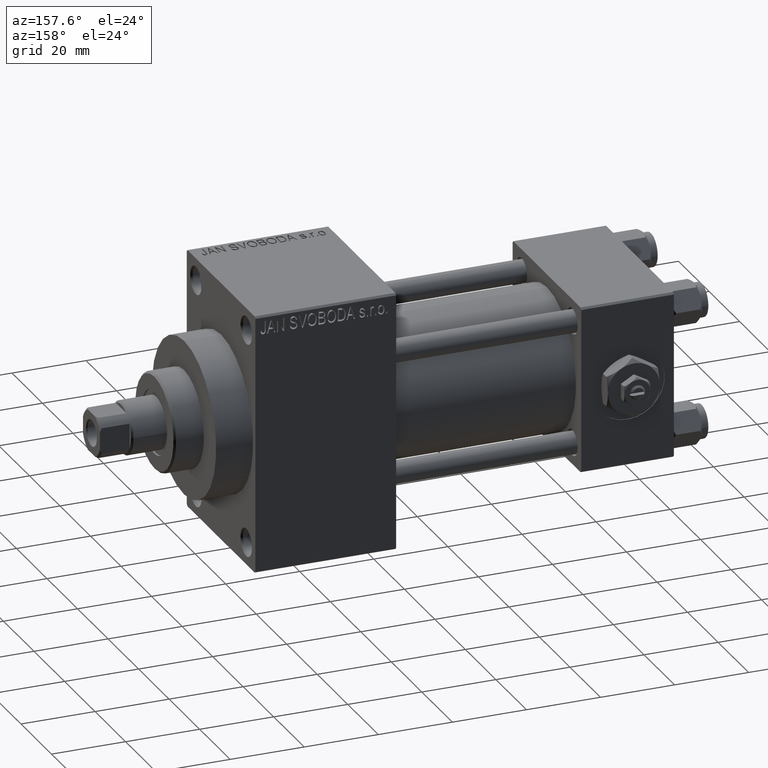
[diagram: clean part render]
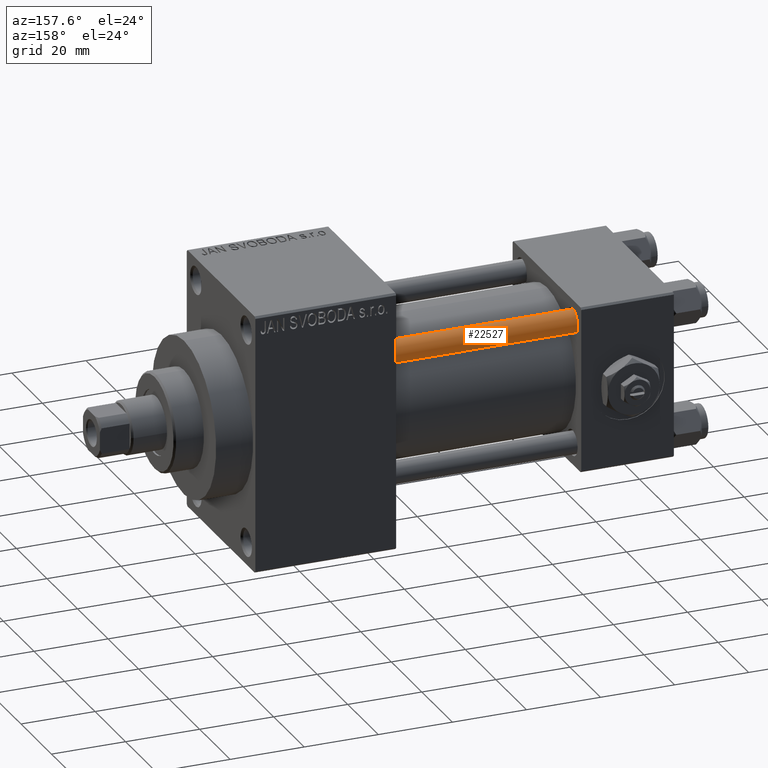
[diagram: same view with one face highlighted and labeled with its STEP entity id]
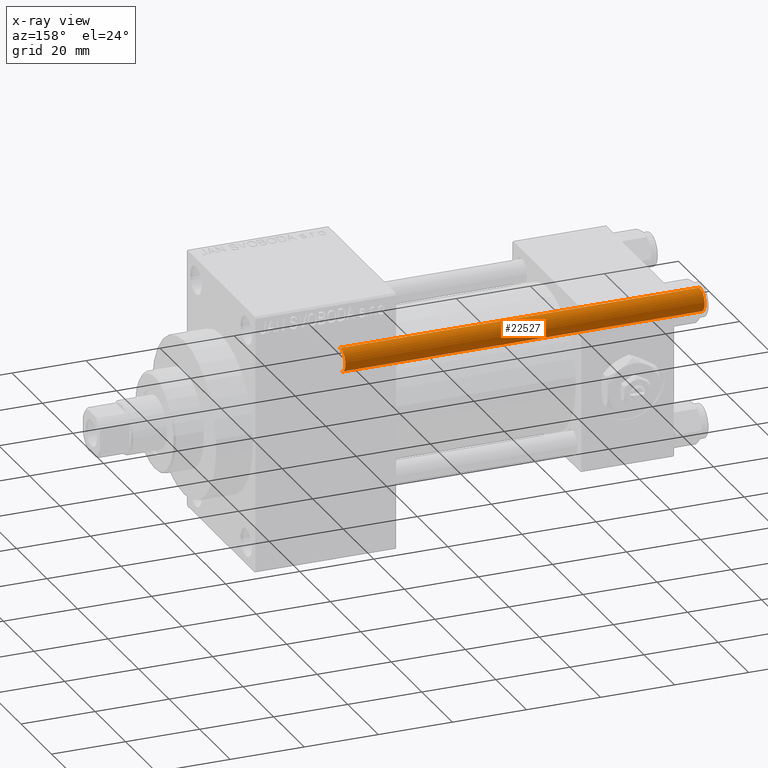
[diagram: x-ray of the same camera — body ghosted, the highlighted face saturated]
A machine part, auxiliary view. The second image highlights one B-rep face of the part: STEP entity #22527.
The next image is the same camera in x-ray: the body ghosted, the highlighted face saturated — about 0% of this face is hidden behind the body in this view.
In plain terms, the highlighted cylindrical surface (edge-blend (fillet) strip) has radius 3 mm, axis along (-1, -0, 0).
Its self-contained STEP definition (entity closure, byte-faithful):
#2483 = DIRECTION ( 'NONE',  ( 1.000000000000000000, 0.000000000000000000, 0.000000000000000000 ) ) ;
#2651 = ORIENTED_EDGE ( 'NONE', *, *, #8471, .T. ) ;
#2724 = DIRECTION ( 'NONE',  ( 0.000000000000000000, 0.000000000000000000, -1.000000000000000000 ) ) ;
#3730 = CYLINDRICAL_SURFACE ( 'NONE', #40216, 3.000000000000000444 ) ;
#4523 = ORIENTED_EDGE ( 'NONE', *, *, #36826, .T. ) ;
#4977 = CARTESIAN_POINT ( 'NONE',  ( 3.000000000000000444, 3.673940397442060361E-16, 97.50000000000001421 ) ) ;
#6972 = CARTESIAN_POINT ( 'NONE',  ( -3.000000000000000444, 0.000000000000000000, 0.5000000000000281997 ) ) ;
#7430 = ORIENTED_EDGE ( 'NONE', *, *, #20233, .F. ) ;
#7720 = VERTEX_POINT ( 'NONE', #11258 ) ;
#8471 = EDGE_CURVE ( 'NONE', #42062, #7720, #17257, .T. ) ;
#11258 = CARTESIAN_POINT ( 'NONE',  ( 3.000000000000000444, 3.673940397442060361E-16, 0.5000000000000281997 ) ) ;
#12080 = DIRECTION ( 'NONE',  ( -1.000000000000000000, 0.000000000000000000, 0.000000000000000000 ) ) ;
#12818 = CIRCLE ( 'NONE', #19109, 3.000000000000000444 ) ;
#14910 = CARTESIAN_POINT ( 'NONE',  ( -3.000000000000000444, 0.000000000000000000, 97.50000000000001421 ) ) ;
#15764 = CARTESIAN_POINT ( 'NONE',  ( 0.000000000000000000, 0.000000000000000000, 98.00000000000000000 ) ) ;
#16653 = LINE ( 'NONE', #21083, #40915 ) ;
#17257 = LINE ( 'NONE', #21676, #42980 ) ;
#19109 = AXIS2_PLACEMENT_3D ( 'NONE', #24397, #2724, #2483 ) ;
#20233 = EDGE_CURVE ( 'NONE', #20279, #36696, #16653, .T. ) ;
#20279 = VERTEX_POINT ( 'NONE', #14910 ) ;
#21083 = CARTESIAN_POINT ( 'NONE',  ( -3.000000000000000444, 0.000000000000000000, 98.00000000000000000 ) ) ;
#21676 = CARTESIAN_POINT ( 'NONE',  ( 3.000000000000000444, 3.673940397442060361E-16, 98.00000000000000000 ) ) ;
#22527 = ADVANCED_FACE ( 'NONE', ( #26606 ), #3730, .T. ) ;
#23920 = AXIS2_PLACEMENT_3D ( 'NONE', #26200, #45076, #37494 ) ;
#24397 = CARTESIAN_POINT ( 'NONE',  ( 0.000000000000000000, 0.000000000000000000, 97.50000000000001421 ) ) ;
#26200 = CARTESIAN_POINT ( 'NONE',  ( 0.000000000000000000, 0.000000000000000000, 0.5000000000000281997 ) ) ;
#26606 = FACE_OUTER_BOUND ( 'NONE', #31353, .T. ) ;
#27402 = ORIENTED_EDGE ( 'NONE', *, *, #43077, .T. ) ;
#28566 = DIRECTION ( 'NONE',  ( -0.000000000000000000, -0.000000000000000000, -1.000000000000000000 ) ) ;
#31353 = EDGE_LOOP ( 'NONE', ( #4523, #2651, #27402, #7430 ) ) ;
#31906 = DIRECTION ( 'NONE',  ( -0.000000000000000000, -0.000000000000000000, -1.000000000000000000 ) ) ;
#32544 = CIRCLE ( 'NONE', #23920, 3.000000000000000444 ) ;
#33730 = DIRECTION ( 'NONE',  ( -0.000000000000000000, -0.000000000000000000, -1.000000000000000000 ) ) ;
#36696 = VERTEX_POINT ( 'NONE', #6972 ) ;
#36826 = EDGE_CURVE ( 'NONE', #20279, #42062, #12818, .T. ) ;
#37494 = DIRECTION ( 'NONE',  ( 1.000000000000000000, 0.000000000000000000, 0.000000000000000000 ) ) ;
#40216 = AXIS2_PLACEMENT_3D ( 'NONE', #15764, #33730, #12080 ) ;
#40915 = VECTOR ( 'NONE', #31906, 1000.000000000000000 ) ;
#42062 = VERTEX_POINT ( 'NONE', #4977 ) ;
#42980 = VECTOR ( 'NONE', #28566, 1000.000000000000000 ) ;
#43077 = EDGE_CURVE ( 'NONE', #7720, #36696, #32544, .T. ) ;
#45076 = DIRECTION ( 'NONE',  ( -0.000000000000000000, -0.000000000000000000, 1.000000000000000000 ) ) ;